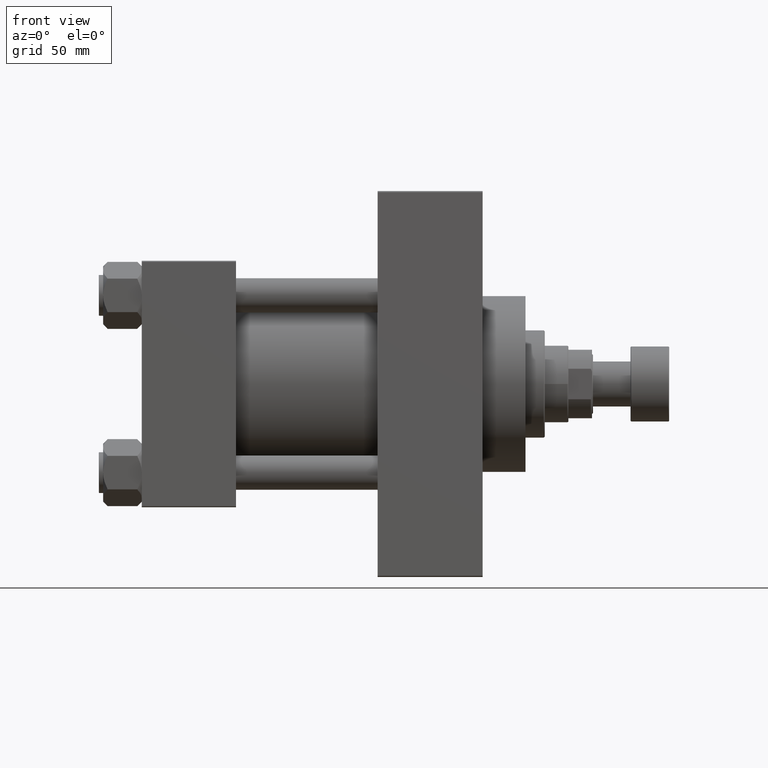
[diagram: clean part render]
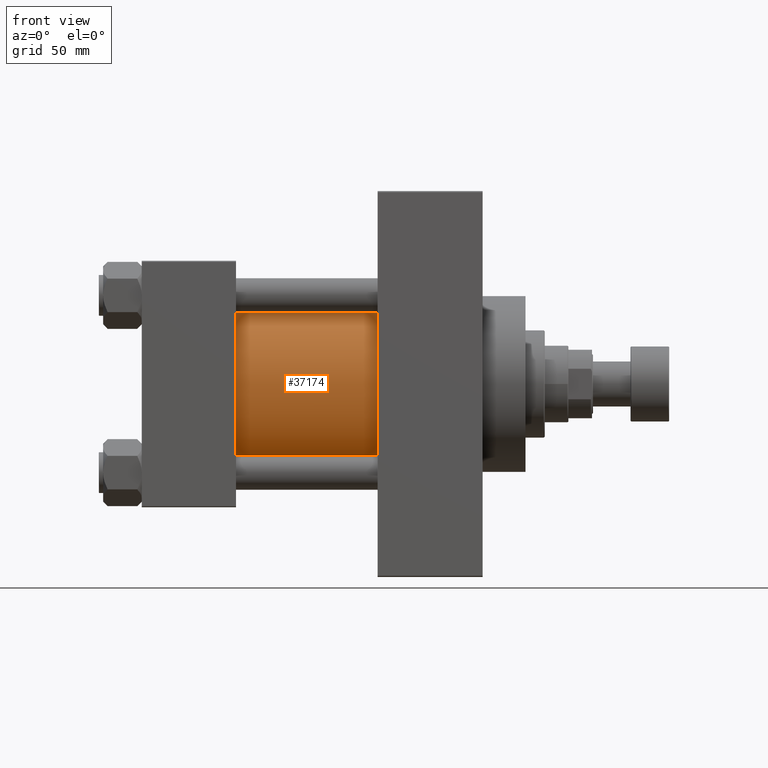
[diagram: same view with one face highlighted and labeled with its STEP entity id]
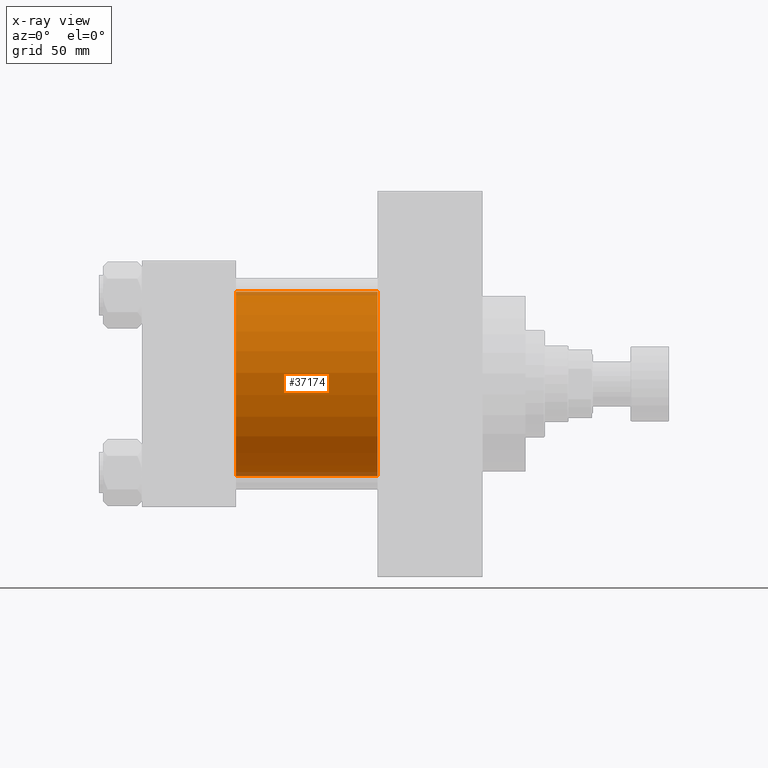
[diagram: x-ray of the same camera — body ghosted, the highlighted face saturated]
A machine part, front view. The second image highlights one B-rep face of the part: STEP entity #37174.
The next image is the same camera in x-ray: the body ghosted, the highlighted face saturated — about 4% of this face is hidden behind the body in this view.
In plain terms, the highlighted cylindrical surface (partial cylindrical patch) has radius 43 mm, axis along (-1, -0, -0).
Its self-contained STEP definition (entity closure, byte-faithful):
#723 = CYLINDRICAL_SURFACE ( 'NONE', #35624, 43.00000000000000000 ) ;
#841 = EDGE_CURVE ( 'NONE', #8414, #27912, #26767, .T. ) ;
#964 = DIRECTION ( 'NONE',  ( 0.000000000000000000, 0.000000000000000000, 1.000000000000000000 ) ) ;
#1115 = VECTOR ( 'NONE', #9998, 1000.000000000000000 ) ;
#5698 = CARTESIAN_POINT ( 'NONE',  ( 110.0000000000000000, -2.602085213965210642E-15, 43.00000000000000000 ) ) ;
#8414 = VERTEX_POINT ( 'NONE', #21919 ) ;
#9250 = EDGE_CURVE ( 'NONE', #23040, #27912, #27339, .T. ) ;
#9761 = CARTESIAN_POINT ( 'NONE',  ( 110.0000000000000000, -2.602085213965210642E-15, 0.000000000000000000 ) ) ;
#9998 = DIRECTION ( 'NONE',  ( -1.000000000000000000, -0.000000000000000000, -0.000000000000000000 ) ) ;
#10246 = CARTESIAN_POINT ( 'NONE',  ( 44.00000000000000000, -2.602085213965210642E-15, 0.000000000000000000 ) ) ;
#12346 = ORIENTED_EDGE ( 'NONE', *, *, #841, .F. ) ;
#16584 = DIRECTION ( 'NONE',  ( 0.000000000000000000, 0.000000000000000000, -1.000000000000000000 ) ) ;
#16820 = EDGE_CURVE ( 'NONE', #36610, #8414, #25247, .T. ) ;
#17459 = ORIENTED_EDGE ( 'NONE', *, *, #23799, .T. ) ;
#17867 = VECTOR ( 'NONE', #31384, 1000.000000000000000 ) ;
#20393 = EDGE_LOOP ( 'NONE', ( #12346, #29378, #17459, #38821 ) ) ;
#21919 = CARTESIAN_POINT ( 'NONE',  ( 110.0000000000000000, 2.663896022368408223E-15, -43.00000000000000000 ) ) ;
#23040 = VERTEX_POINT ( 'NONE', #34281 ) ;
#23634 = DIRECTION ( 'NONE',  ( 1.000000000000000000, 0.000000000000000000, 0.000000000000000000 ) ) ;
#23799 = EDGE_CURVE ( 'NONE', #36610, #23040, #42853, .T. ) ;
#25247 = CIRCLE ( 'NONE', #27579, 43.00000000000000000 ) ;
#26767 = LINE ( 'NONE', #38450, #17867 ) ;
#27339 = CIRCLE ( 'NONE', #46119, 43.00000000000000000 ) ;
#27579 = AXIS2_PLACEMENT_3D ( 'NONE', #9761, #23634, #16584 ) ;
#27912 = VERTEX_POINT ( 'NONE', #44417 ) ;
#28979 = DIRECTION ( 'NONE',  ( 0.000000000000000000, 0.000000000000000000, 1.000000000000000000 ) ) ;
#29378 = ORIENTED_EDGE ( 'NONE', *, *, #16820, .F. ) ;
#30172 = DIRECTION ( 'NONE',  ( -1.000000000000000000, -0.000000000000000000, -0.000000000000000000 ) ) ;
#31384 = DIRECTION ( 'NONE',  ( -1.000000000000000000, -0.000000000000000000, -0.000000000000000000 ) ) ;
#34281 = CARTESIAN_POINT ( 'NONE',  ( 44.00000000000000000, -2.602085213965210642E-15, 43.00000000000000000 ) ) ;
#35075 = CARTESIAN_POINT ( 'NONE',  ( 110.0000000000000000, -2.602085213965210642E-15, 43.00000000000000000 ) ) ;
#35624 = AXIS2_PLACEMENT_3D ( 'NONE', #38185, #30172, #964 ) ;
#36610 = VERTEX_POINT ( 'NONE', #5698 ) ;
#37174 = ADVANCED_FACE ( 'NONE', ( #37473 ), #723, .T. ) ;
#37473 = FACE_OUTER_BOUND ( 'NONE', #20393, .T. ) ;
#38185 = CARTESIAN_POINT ( 'NONE',  ( 110.0000000000000000, -2.602085213965210642E-15, 0.000000000000000000 ) ) ;
#38450 = CARTESIAN_POINT ( 'NONE',  ( 110.0000000000000000, 2.663896022368408223E-15, -43.00000000000000000 ) ) ;
#38821 = ORIENTED_EDGE ( 'NONE', *, *, #9250, .T. ) ;
#42853 = LINE ( 'NONE', #35075, #1115 ) ;
#44417 = CARTESIAN_POINT ( 'NONE',  ( 44.00000000000000000, 2.663896022368408223E-15, -43.00000000000000000 ) ) ;
#46119 = AXIS2_PLACEMENT_3D ( 'NONE', #10246, #47248, #28979 ) ;
#47248 = DIRECTION ( 'NONE',  ( 1.000000000000000000, -0.000000000000000000, 0.000000000000000000 ) ) ;